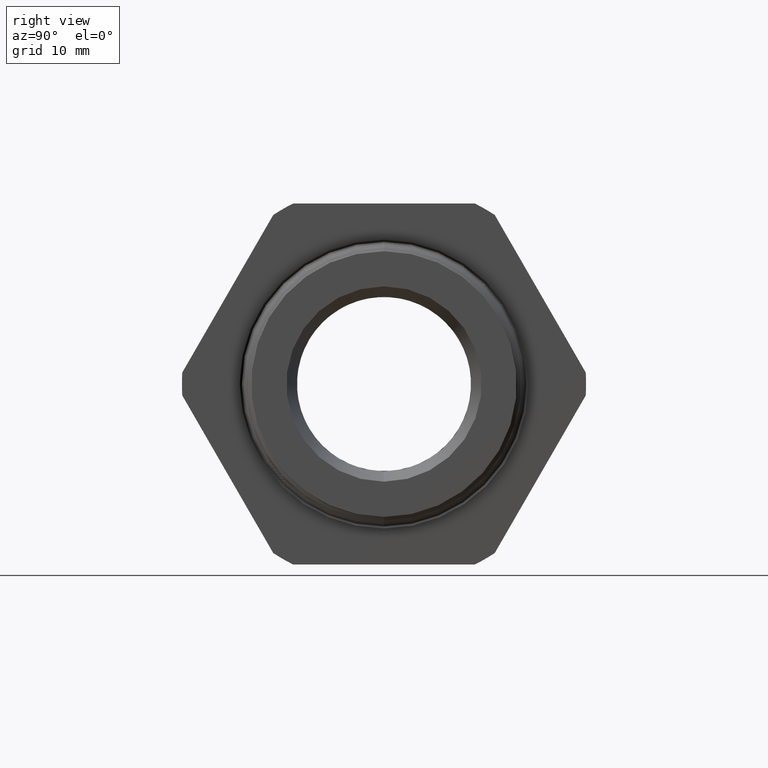
[diagram: clean part render]
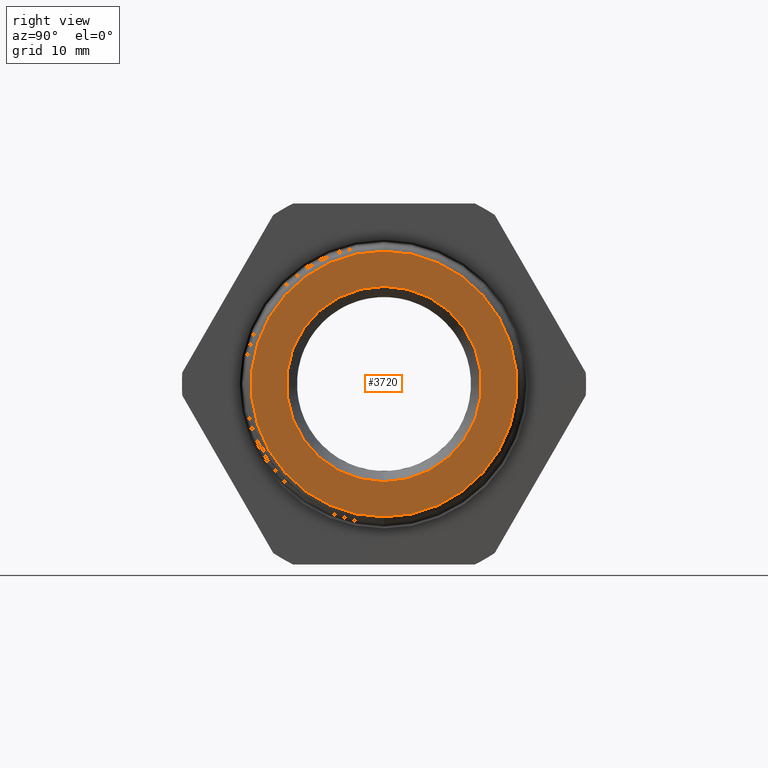
[diagram: same view with one face highlighted and labeled with its STEP entity id]
A machine part, right view. The second image highlights one B-rep face of the part: STEP entity #3720.
In plain terms, the highlighted planar face has unit normal (-1, 0, 0).
Its self-contained STEP definition (entity closure, byte-faithful):
#152 = VERTEX_POINT ( 'NONE', #1229 ) ;
#155 = EDGE_CURVE ( 'NONE', #152, #156, #1217, .T. ) ;
#156 = VERTEX_POINT ( 'NONE', #1213 ) ;
#758 = EDGE_CURVE ( 'NONE', #3547, #3560, #1899, .T. ) ;
#1213 = CARTESIAN_POINT ( 'NONE',  ( 0.5500000000000001600, 4.309170967924009200E-017, 0.3518705124550377500 ) ) ;
#1214 = DIRECTION ( 'NONE',  ( 0.0000000000000000000, 0.0000000000000000000, 1.000000000000000000 ) ) ;
#1215 = DIRECTION ( 'NONE',  ( -1.000000000000000000, 0.0000000000000000000, 0.0000000000000000000 ) ) ;
#1216 = AXIS2_PLACEMENT_3D ( 'NONE', #1222, #1215, #1214 ) ;
#1217 = CIRCLE ( 'NONE', #1216, 0.3518705124550377500 ) ;
#1222 = CARTESIAN_POINT ( 'NONE',  ( 0.5500000000000001600, 0.0000000000000000000, 0.0000000000000000000 ) ) ;
#1229 = CARTESIAN_POINT ( 'NONE',  ( 0.5500000000000001600, 0.0000000000000000000, -0.3518705124550377500 ) ) ;
#1839 = CARTESIAN_POINT ( 'NONE',  ( 0.5500000000000000400, 0.0000000000000000000, 0.0000000000000000000 ) ) ;
#1896 = DIRECTION ( 'NONE',  ( 0.0000000000000000000, 0.0000000000000000000, 1.000000000000000000 ) ) ;
#1897 = DIRECTION ( 'NONE',  ( 1.000000000000000000, 0.0000000000000000000, 0.0000000000000000000 ) ) ;
#1898 = AXIS2_PLACEMENT_3D ( 'NONE', #1839, #1897, #1896 ) ;
#1899 = CIRCLE ( 'NONE', #1898, 0.4784864814003184100 ) ;
#2637 = CIRCLE ( 'NONE', #3609, 0.4784864814003184100 ) ;
#2938 = CARTESIAN_POINT ( 'NONE',  ( 0.5500000000000000400, 5.873035001460818100E-017, -0.4784864814003184100 ) ) ;
#2957 = CARTESIAN_POINT ( 'NONE',  ( 0.5500000000000000400, 0.0000000000000000000, 0.4784864814003184100 ) ) ;
#3202 = DIRECTION ( 'NONE',  ( 0.0000000000000000000, 0.0000000000000000000, 1.000000000000000000 ) ) ;
#3203 = DIRECTION ( 'NONE',  ( -1.000000000000000000, 0.0000000000000000000, 0.0000000000000000000 ) ) ;
#3204 = CARTESIAN_POINT ( 'NONE',  ( 0.5500000000000001600, 0.0000000000000000000, 0.0000000000000000000 ) ) ;
#3205 = AXIS2_PLACEMENT_3D ( 'NONE', #3204, #3203, #3202 ) ;
#3206 = CIRCLE ( 'NONE', #3205, 0.3518705124550377500 ) ;
#3207 = DIRECTION ( 'NONE',  ( 0.0000000000000000000, 0.0000000000000000000, 1.000000000000000000 ) ) ;
#3208 = DIRECTION ( 'NONE',  ( -1.000000000000000000, 0.0000000000000000000, 0.0000000000000000000 ) ) ;
#3209 = CARTESIAN_POINT ( 'NONE',  ( 0.5500000000000000400, 0.4909864814003184200, 0.0000000000000000000 ) ) ;
#3210 = AXIS2_PLACEMENT_3D ( 'NONE', #3209, #3208, #3207 ) ;
#3211 = PLANE ( 'NONE',  #3210 ) ;
#3212 = FACE_BOUND ( 'NONE', #3421, .T. ) ;
#3213 = FACE_OUTER_BOUND ( 'NONE', #3723, .T. ) ;
#3419 = ORIENTED_EDGE ( 'NONE', *, *, #155, .T. ) ;
#3420 = ORIENTED_EDGE ( 'NONE', *, *, #3725, .T. ) ;
#3421 = EDGE_LOOP ( 'NONE', ( #3419, #3420 ) ) ;
#3422 = ORIENTED_EDGE ( 'NONE', *, *, #3546, .T. ) ;
#3423 = ORIENTED_EDGE ( 'NONE', *, *, #758, .T. ) ;
#3546 = EDGE_CURVE ( 'NONE', #3560, #3547, #2637, .T. ) ;
#3547 = VERTEX_POINT ( 'NONE', #2957 ) ;
#3560 = VERTEX_POINT ( 'NONE', #2938 ) ;
#3609 = AXIS2_PLACEMENT_3D ( 'NONE', #3626, #3623, #3625 ) ;
#3623 = DIRECTION ( 'NONE',  ( 1.000000000000000000, 0.0000000000000000000, 0.0000000000000000000 ) ) ;
#3625 = DIRECTION ( 'NONE',  ( 0.0000000000000000000, 0.0000000000000000000, 1.000000000000000000 ) ) ;
#3626 = CARTESIAN_POINT ( 'NONE',  ( 0.5500000000000000400, 0.0000000000000000000, 0.0000000000000000000 ) ) ;
#3720 = ADVANCED_FACE ( 'NONE', ( #3213, #3212 ), #3211, .F. ) ;
#3723 = EDGE_LOOP ( 'NONE', ( #3423, #3422 ) ) ;
#3725 = EDGE_CURVE ( 'NONE', #156, #152, #3206, .T. ) ;